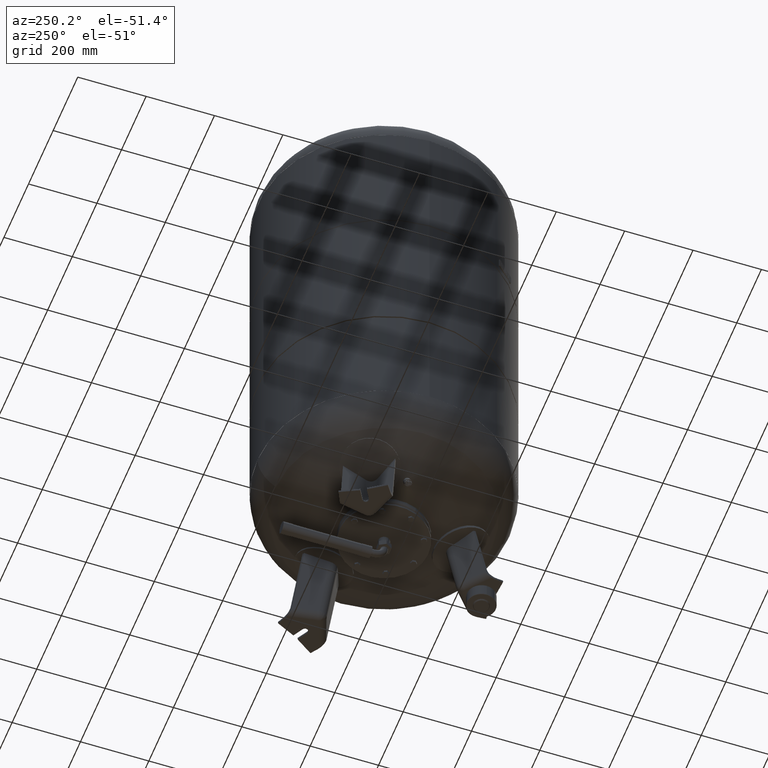
[diagram: clean part render]
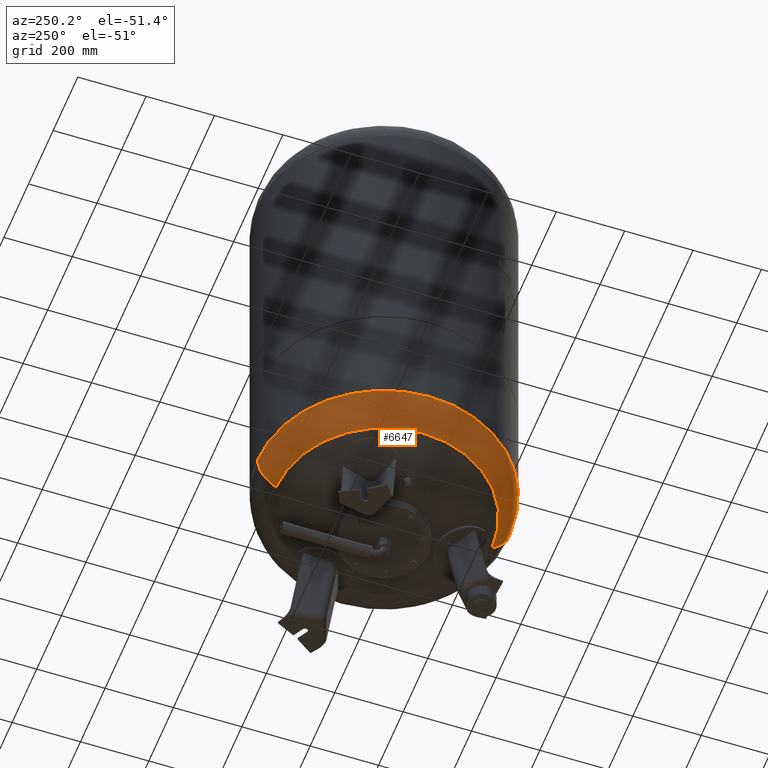
[diagram: same view with one face highlighted and labeled with its STEP entity id]
A machine part, auxiliary view. The second image highlights one B-rep face of the part: STEP entity #6647.
In plain terms, the highlighted toroidal blend (fillet) surface has major radius 254.5 mm and minor (blend) radius 115.5 mm.
Its self-contained STEP definition (entity closure, byte-faithful):
#6552=CARTESIAN_POINT('',(-370.0,-3.468087E-014,368.793879611869560));
#6553=VERTEX_POINT('',#6552);
#6577=CARTESIAN_POINT('',(-4.531044E-014,369.999999999999940,368.793879611869610));
#6578=VERTEX_POINT('',#6577);
#6586=CARTESIAN_POINT('',(0.0,-3.468087E-014,368.793879611869560));
#6587=DIRECTION('',(0.0,0.0,1.0));
#6588=DIRECTION('',(-1.0,0.0,0.0));
#6589=AXIS2_PLACEMENT_3D('',#6586,#6587,#6588);
#6590=CIRCLE('',#6589,370.0);
#6591=EDGE_CURVE('',#6578,#6553,#6590,.T.);
#6596=CARTESIAN_POINT('',(0.0,-3.468087E-014,368.793879611869560));
#6597=DIRECTION('',(0.0,-1.836970E-016,1.0));
#6598=DIRECTION('',(0.0,-1.0,0.0));
#6599=AXIS2_PLACEMENT_3D('',#6596,#6597,#6598);
#6600=TOROIDAL_SURFACE('',#6599,254.500000000000030,115.500000000000000);
#6601=CARTESIAN_POINT('',(0.0,-370.000000000000060,368.793879611869500));
#6602=VERTEX_POINT('',#6601);
#6603=CARTESIAN_POINT('',(0.0,-315.931034482758610,270.985505725079410));
#6604=VERTEX_POINT('',#6603);
#6605=CARTESIAN_POINT('',(0.0,-254.500000000000060,368.793879611869500));
#6606=DIRECTION('',(1.0,0.0,0.0));
#6607=DIRECTION('',(0.0,-1.0,0.0));
#6608=AXIS2_PLACEMENT_3D('',#6605,#6606,#6607);
#6609=CIRCLE('',#6608,115.500000000000000);
#6610=EDGE_CURVE('',#6602,#6604,#6609,.T.);
#6611=ORIENTED_EDGE('',*,*,#6610,.F.);
#6612=CARTESIAN_POINT('',(0.0,-3.468087E-014,368.793879611869560));
#6613=DIRECTION('',(0.0,0.0,1.0));
#6614=DIRECTION('',(-1.0,0.0,0.0));
#6615=AXIS2_PLACEMENT_3D('',#6612,#6613,#6614);
#6616=CIRCLE('',#6615,370.0);
#6617=EDGE_CURVE('',#6553,#6602,#6616,.T.);
#6618=ORIENTED_EDGE('',*,*,#6617,.F.);
#6619=ORIENTED_EDGE('',*,*,#6591,.F.);
#6620=CARTESIAN_POINT('',(-3.868912E-014,315.931034482758610,270.985505725079630));
#6621=VERTEX_POINT('',#6620);
#6622=CARTESIAN_POINT('',(-3.116623E-014,254.500000000000000,368.793879611869610));
#6623=DIRECTION('',(-1.0,0.0,0.0));
#6624=DIRECTION('',(0.0,1.0,0.0));
#6625=AXIS2_PLACEMENT_3D('',#6622,#6623,#6624);
#6626=CIRCLE('',#6625,115.500000000000000);
#6627=EDGE_CURVE('',#6578,#6621,#6626,.T.);
#6628=ORIENTED_EDGE('',*,*,#6627,.T.);
#6629=CARTESIAN_POINT('',(-315.931034482758610,-1.671377E-014,270.985505725079520));
#6630=VERTEX_POINT('',#6629);
#6631=CARTESIAN_POINT('',(0.0,-1.671377E-014,270.985505725079520));
#6632=DIRECTION('',(0.0,0.0,1.0));
#6633=DIRECTION('',(-1.0,0.0,0.0));
#6634=AXIS2_PLACEMENT_3D('',#6631,#6632,#6633);
#6635=CIRCLE('',#6634,315.931034482758610);
#6636=EDGE_CURVE('',#6621,#6630,#6635,.T.);
#6637=ORIENTED_EDGE('',*,*,#6636,.T.);
#6638=CARTESIAN_POINT('',(0.0,-1.671377E-014,270.985505725079520));
#6639=DIRECTION('',(0.0,0.0,1.0));
#6640=DIRECTION('',(-1.0,0.0,0.0));
#6641=AXIS2_PLACEMENT_3D('',#6638,#6639,#6640);
#6642=CIRCLE('',#6641,315.931034482758610);
#6643=EDGE_CURVE('',#6630,#6604,#6642,.T.);
#6644=ORIENTED_EDGE('',*,*,#6643,.T.);
#6645=EDGE_LOOP('',(#6611,#6618,#6619,#6628,#6637,#6644));
#6646=FACE_OUTER_BOUND('',#6645,.T.);
#6647=ADVANCED_FACE('',(#6646),#6600,.T.);